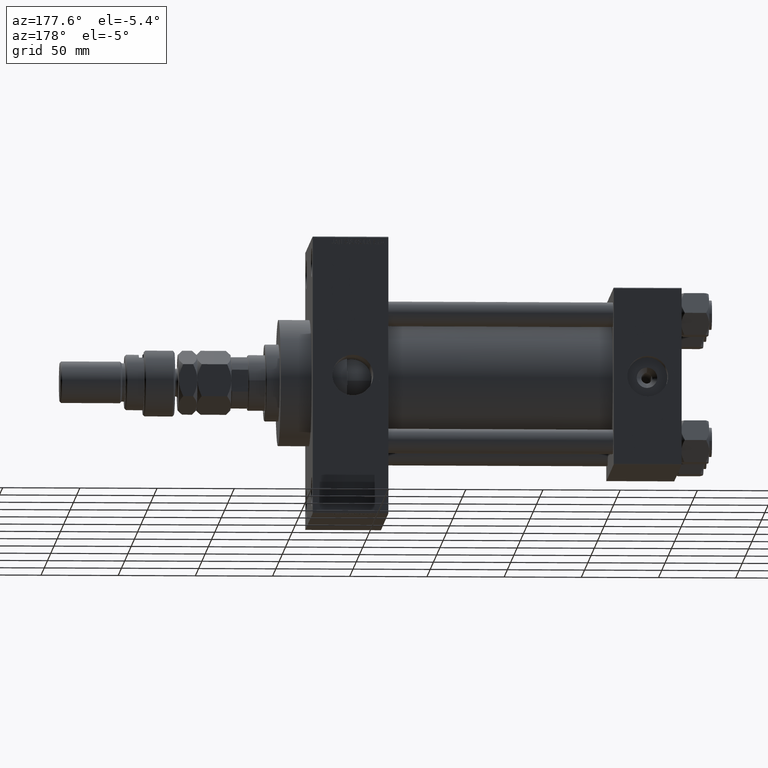
[diagram: clean part render]
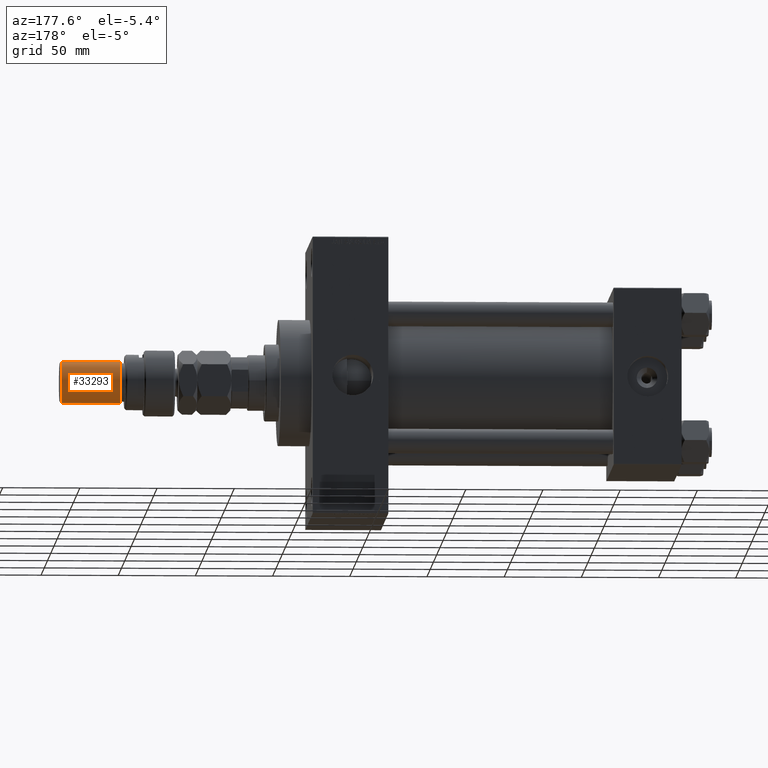
[diagram: same view with one face highlighted and labeled with its STEP entity id]
A machine part, auxiliary view. The second image highlights one B-rep face of the part: STEP entity #33293.
In plain terms, the highlighted cylindrical surface (edge-blend (fillet) strip) has radius 13.5 mm, axis along (-1, -0, 0).
Its self-contained STEP definition (entity closure, byte-faithful):
#1215 = DIRECTION ( 'NONE',  ( -0.000000000000000000, -0.000000000000000000, -1.000000000000000000 ) ) ;
#1297 = EDGE_CURVE ( 'NONE', #45889, #28731, #33524, .T. ) ;
#5627 = CARTESIAN_POINT ( 'NONE',  ( -13.50000000000000000, 0.000000000000000000, 73.00000000000001421 ) ) ;
#6022 = ORIENTED_EDGE ( 'NONE', *, *, #1297, .F. ) ;
#6792 = EDGE_CURVE ( 'NONE', #31037, #28731, #26447, .T. ) ;
#9191 = FACE_OUTER_BOUND ( 'NONE', #17816, .T. ) ;
#9456 = DIRECTION ( 'NONE',  ( 1.000000000000000000, 0.000000000000000000, 0.000000000000000000 ) ) ;
#11844 = VECTOR ( 'NONE', #45870, 1000.000000000000000 ) ;
#12912 = DIRECTION ( 'NONE',  ( -1.000000000000000000, 0.000000000000000000, 0.000000000000000000 ) ) ;
#13601 = LINE ( 'NONE', #29757, #11844 ) ;
#14255 = VECTOR ( 'NONE', #1215, 1000.000000000000000 ) ;
#17644 = CYLINDRICAL_SURFACE ( 'NONE', #32709, 13.50000000000000000 ) ;
#17816 = EDGE_LOOP ( 'NONE', ( #21034, #36438, #38514, #6022 ) ) ;
#18272 = EDGE_CURVE ( 'NONE', #48214, #31037, #13601, .T. ) ;
#19076 = DIRECTION ( 'NONE',  ( -0.000000000000000000, -0.000000000000000000, 1.000000000000000000 ) ) ;
#21034 = ORIENTED_EDGE ( 'NONE', *, *, #33280, .T. ) ;
#23581 = DIRECTION ( 'NONE',  ( 1.000000000000000000, 0.000000000000000000, 0.000000000000000000 ) ) ;
#25613 = AXIS2_PLACEMENT_3D ( 'NONE', #31263, #19076, #23581 ) ;
#25626 = CARTESIAN_POINT ( 'NONE',  ( -13.50000000000000000, 0.000000000000000000, 34.99999999999999289 ) ) ;
#26447 = CIRCLE ( 'NONE', #25613, 13.50000000000000000 ) ;
#26811 = CARTESIAN_POINT ( 'NONE',  ( -13.50000000000000000, 0.000000000000000000, 74.00000000000001421 ) ) ;
#28731 = VERTEX_POINT ( 'NONE', #25626 ) ;
#28794 = DIRECTION ( 'NONE',  ( -0.000000000000000000, -0.000000000000000000, -1.000000000000000000 ) ) ;
#29577 = DIRECTION ( 'NONE',  ( 0.000000000000000000, 0.000000000000000000, -1.000000000000000000 ) ) ;
#29757 = CARTESIAN_POINT ( 'NONE',  ( 13.50000000000000000, 1.653273178848926867E-15, 74.00000000000001421 ) ) ;
#31037 = VERTEX_POINT ( 'NONE', #33081 ) ;
#31263 = CARTESIAN_POINT ( 'NONE',  ( 0.000000000000000000, 0.000000000000000000, 34.99999999999999289 ) ) ;
#32709 = AXIS2_PLACEMENT_3D ( 'NONE', #45172, #28794, #12912 ) ;
#33081 = CARTESIAN_POINT ( 'NONE',  ( 13.50000000000000000, 1.653273178848926867E-15, 34.99999999999999289 ) ) ;
#33280 = EDGE_CURVE ( 'NONE', #45889, #48214, #38584, .T. ) ;
#33293 = ADVANCED_FACE ( 'NONE', ( #9191 ), #17644, .T. ) ;
#33524 = LINE ( 'NONE', #26811, #14255 ) ;
#35030 = CARTESIAN_POINT ( 'NONE',  ( 13.50000000000000000, 1.653273178848926867E-15, 73.00000000000001421 ) ) ;
#36438 = ORIENTED_EDGE ( 'NONE', *, *, #18272, .T. ) ;
#38514 = ORIENTED_EDGE ( 'NONE', *, *, #6792, .T. ) ;
#38584 = CIRCLE ( 'NONE', #41973, 13.50000000000000000 ) ;
#41973 = AXIS2_PLACEMENT_3D ( 'NONE', #49650, #29577, #9456 ) ;
#45172 = CARTESIAN_POINT ( 'NONE',  ( 0.000000000000000000, 0.000000000000000000, 74.00000000000001421 ) ) ;
#45870 = DIRECTION ( 'NONE',  ( -0.000000000000000000, -0.000000000000000000, -1.000000000000000000 ) ) ;
#45889 = VERTEX_POINT ( 'NONE', #5627 ) ;
#48214 = VERTEX_POINT ( 'NONE', #35030 ) ;
#49650 = CARTESIAN_POINT ( 'NONE',  ( 0.000000000000000000, 0.000000000000000000, 73.00000000000001421 ) ) ;